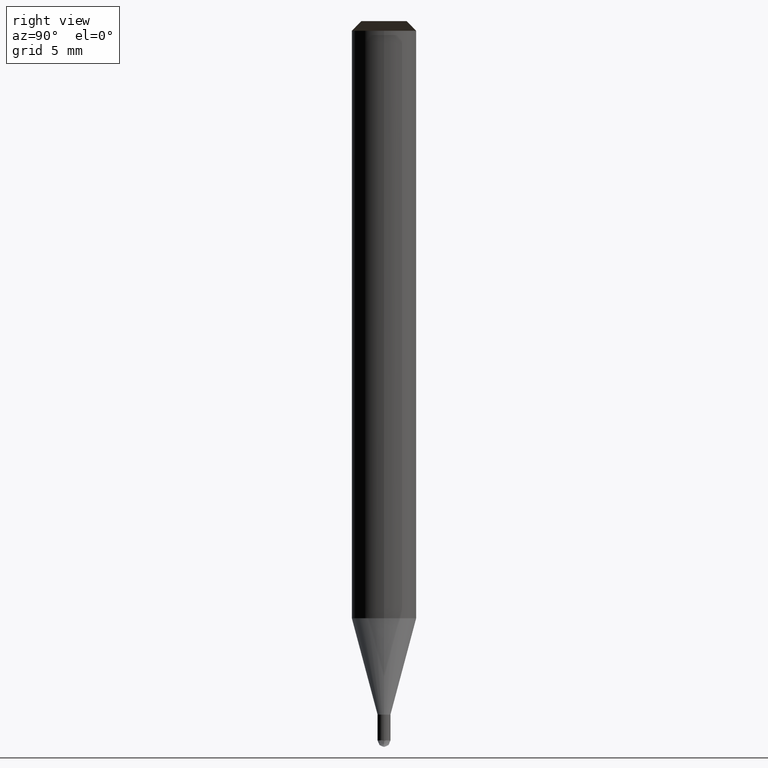
[diagram: clean part render]
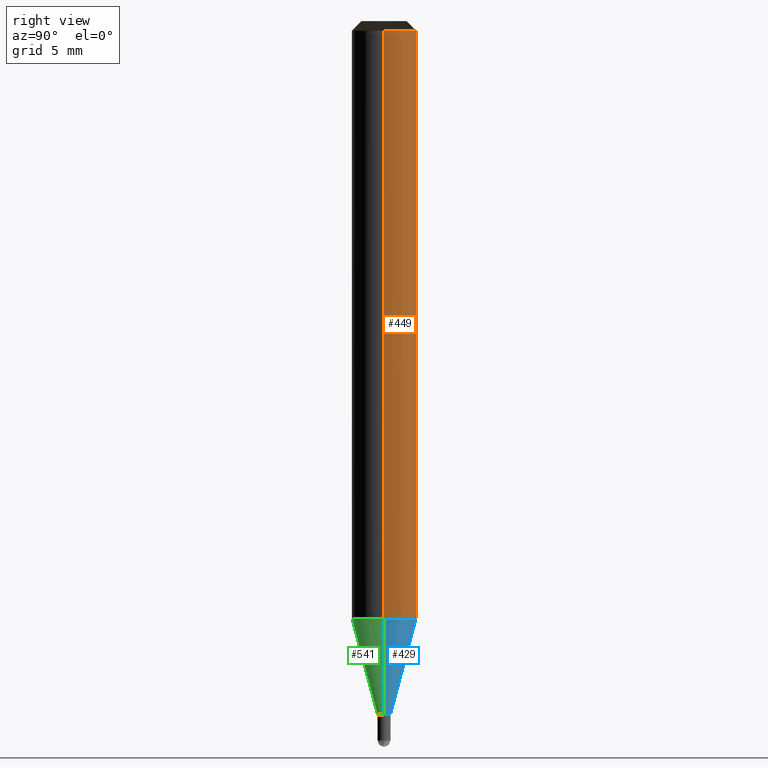
[diagram: same view with three faces highlighted in distinct colors, each labeled with its STEP entity id]
A machine part, right view with three faces highlighted in distinct colors.
Their STEP definitions:

[orange] entity #449 — the highlighted face is a freeform B-spline surface patch.
#233=CARTESIAN_POINT('',(2.0,0.0,-0.0));
#234=CARTESIAN_POINT('',(2.0,2.0,-0.0));
#235=CARTESIAN_POINT('',(0.0,2.0,-0.0));
#236=CARTESIAN_POINT('',(-2.0,2.0,-0.0));
#237=CARTESIAN_POINT('',(-2.0,0.0,-0.0));
#238=CARTESIAN_POINT('',(2.0,0.0,36.428));
#239=CARTESIAN_POINT('',(2.0,2.0,36.428));
#240=CARTESIAN_POINT('',(0.0,2.0,36.428));
#241=CARTESIAN_POINT('',(-2.0,2.0,36.428));
#242=CARTESIAN_POINT('',(-2.0,0.0,36.428));
#430=(
BOUNDED_SURFACE()
B_SPLINE_SURFACE(1,2,(
(#233,#234,#235,#236,#237),
(#238,#239,#240,#241,#242)
), .UNSPECIFIED.,.F.,.F.,.F.)
B_SPLINE_SURFACE_WITH_KNOTS((2,2),(3,2,3),(
0.0,1.0),(
0.0,0.5,1.0), .UNSPECIFIED.)
GEOMETRIC_REPRESENTATION_ITEM()
RATIONAL_B_SPLINE_SURFACE(((1.0,0.707106781187,1.0,0.707106781187,1.0),
(1.0,0.707106781187,1.0,0.707106781187,1.0)
))
REPRESENTATION_ITEM('')
SURFACE()
);
#431=(
BOUNDED_CURVE()
B_SPLINE_CURVE(2,(#238,#239,#240,#241,#242),.UNSPECIFIED.,.F.,.F.)
B_SPLINE_CURVE_WITH_KNOTS((3,2,3),
(0.0,0.5,1.0),.UNSPECIFIED.)
CURVE()
GEOMETRIC_REPRESENTATION_ITEM()
RATIONAL_B_SPLINE_CURVE((1.0,0.707106781187,1.0,0.707106781187,1.0))
REPRESENTATION_ITEM('')
);
#432=(
BOUNDED_CURVE()
B_SPLINE_CURVE(1,(#242,#237),.UNSPECIFIED.,.F.,.F.)
B_SPLINE_CURVE_WITH_KNOTS((2,2),
(0.0,1.0),.UNSPECIFIED.)
CURVE()
GEOMETRIC_REPRESENTATION_ITEM()
RATIONAL_B_SPLINE_CURVE((1.0,1.0))
REPRESENTATION_ITEM('')
);
#433=(
BOUNDED_CURVE()
B_SPLINE_CURVE(2,(#237,#236,#235,#234,#233),.UNSPECIFIED.,.F.,.F.)
B_SPLINE_CURVE_WITH_KNOTS((3,2,3),
(0.0,0.5,1.0),.UNSPECIFIED.)
CURVE()
GEOMETRIC_REPRESENTATION_ITEM()
RATIONAL_B_SPLINE_CURVE((1.0,0.707106781187,1.0,0.707106781187,1.0))
REPRESENTATION_ITEM('')
);
#434=(
BOUNDED_CURVE()
B_SPLINE_CURVE(1,(#233,#238),.UNSPECIFIED.,.F.,.F.)
B_SPLINE_CURVE_WITH_KNOTS((2,2),
(0.0,1.0),.UNSPECIFIED.)
CURVE()
GEOMETRIC_REPRESENTATION_ITEM()
RATIONAL_B_SPLINE_CURVE((1.0,1.0))
REPRESENTATION_ITEM('')
);
#435=VERTEX_POINT('',#233);
#436=VERTEX_POINT('',#237);
#437=VERTEX_POINT('',#238);
#438=VERTEX_POINT('',#242);
#439=EDGE_CURVE('',#437,#438,#431,.T.);
#440=EDGE_CURVE('',#438,#436,#432,.T.);
#441=EDGE_CURVE('',#436,#435,#433,.T.);
#442=EDGE_CURVE('',#435,#437,#434,.T.);
#443=ORIENTED_EDGE('',*,*,#439,.T.);
#444=ORIENTED_EDGE('',*,*,#440,.T.);
#445=ORIENTED_EDGE('',*,*,#441,.T.);
#446=ORIENTED_EDGE('',*,*,#442,.T.);
#447=EDGE_LOOP('',(#443,#444,#445,#446));
#448=FACE_OUTER_BOUND('',#447,.T.);
#449=ADVANCED_FACE('',(#448),#430,.T.);

[blue] entity #429 — the highlighted face is a freeform B-spline surface patch.
#228=CARTESIAN_POINT('',(0.4,0.0,-5.97128129211));
#229=CARTESIAN_POINT('',(0.4,0.4,-5.97128129211));
#230=CARTESIAN_POINT('',(0.0,0.4,-5.97128129211));
#231=CARTESIAN_POINT('',(-0.4,0.4,-5.97128129211));
#232=CARTESIAN_POINT('',(-0.4,0.0,-5.97128129211));
#233=CARTESIAN_POINT('',(2.0,0.0,-0.0));
#234=CARTESIAN_POINT('',(2.0,2.0,-0.0));
#235=CARTESIAN_POINT('',(0.0,2.0,-0.0));
#236=CARTESIAN_POINT('',(-2.0,2.0,-0.0));
#237=CARTESIAN_POINT('',(-2.0,0.0,-0.0));
#410=(
BOUNDED_SURFACE()
B_SPLINE_SURFACE(1,2,(
(#228,#229,#230,#231,#232),
(#233,#234,#235,#236,#237)
), .UNSPECIFIED.,.F.,.F.,.F.)
B_SPLINE_SURFACE_WITH_KNOTS((2,2),(3,2,3),(
0.0,1.0),(
0.0,0.5,1.0), .UNSPECIFIED.)
GEOMETRIC_REPRESENTATION_ITEM()
RATIONAL_B_SPLINE_SURFACE(((1.0,0.707106781187,1.0,0.707106781187,1.0),
(1.0,0.707106781187,1.0,0.707106781187,1.0)
))
REPRESENTATION_ITEM('')
SURFACE()
);
#411=(
BOUNDED_CURVE()
B_SPLINE_CURVE(2,(#233,#234,#235,#236,#237),.UNSPECIFIED.,.F.,.F.)
B_SPLINE_CURVE_WITH_KNOTS((3,2,3),
(0.0,0.5,1.0),.UNSPECIFIED.)
CURVE()
GEOMETRIC_REPRESENTATION_ITEM()
RATIONAL_B_SPLINE_CURVE((1.0,0.707106781187,1.0,0.707106781187,1.0))
REPRESENTATION_ITEM('')
);
#412=(
BOUNDED_CURVE()
B_SPLINE_CURVE(1,(#237,#232),.UNSPECIFIED.,.F.,.F.)
B_SPLINE_CURVE_WITH_KNOTS((2,2),
(0.0,1.0),.UNSPECIFIED.)
CURVE()
GEOMETRIC_REPRESENTATION_ITEM()
RATIONAL_B_SPLINE_CURVE((1.0,1.0))
REPRESENTATION_ITEM('')
);
#413=(
BOUNDED_CURVE()
B_SPLINE_CURVE(2,(#232,#231,#230,#229,#228),.UNSPECIFIED.,.F.,.F.)
B_SPLINE_CURVE_WITH_KNOTS((3,2,3),
(0.0,0.5,1.0),.UNSPECIFIED.)
CURVE()
GEOMETRIC_REPRESENTATION_ITEM()
RATIONAL_B_SPLINE_CURVE((1.0,0.707106781187,1.0,0.707106781187,1.0))
REPRESENTATION_ITEM('')
);
#414=(
BOUNDED_CURVE()
B_SPLINE_CURVE(1,(#228,#233),.UNSPECIFIED.,.F.,.F.)
B_SPLINE_CURVE_WITH_KNOTS((2,2),
(0.0,1.0),.UNSPECIFIED.)
CURVE()
GEOMETRIC_REPRESENTATION_ITEM()
RATIONAL_B_SPLINE_CURVE((1.0,1.0))
REPRESENTATION_ITEM('')
);
#415=VERTEX_POINT('',#228);
#416=VERTEX_POINT('',#232);
#417=VERTEX_POINT('',#233);
#418=VERTEX_POINT('',#237);
#419=EDGE_CURVE('',#417,#418,#411,.T.);
#420=EDGE_CURVE('',#418,#416,#412,.T.);
#421=EDGE_CURVE('',#416,#415,#413,.T.);
#422=EDGE_CURVE('',#415,#417,#414,.T.);
#423=ORIENTED_EDGE('',*,*,#419,.T.);
#424=ORIENTED_EDGE('',*,*,#420,.T.);
#425=ORIENTED_EDGE('',*,*,#421,.T.);
#426=ORIENTED_EDGE('',*,*,#422,.T.);
#427=EDGE_LOOP('',(#423,#424,#425,#426));
#428=FACE_OUTER_BOUND('',#427,.T.);
#429=ADVANCED_FACE('',(#428),#410,.T.);

[green] entity #541 — the highlighted face is a freeform B-spline surface patch.
#228=CARTESIAN_POINT('',(0.4,0.0,-5.97128129211));
#232=CARTESIAN_POINT('',(-0.4,0.0,-5.97128129211));
#233=CARTESIAN_POINT('',(2.0,0.0,-0.0));
#237=CARTESIAN_POINT('',(-2.0,0.0,-0.0));
#249=CARTESIAN_POINT('',(-0.4,-0.4,-5.97128129211));
#250=CARTESIAN_POINT('',(0.0,-0.4,-5.97128129211));
#251=CARTESIAN_POINT('',(0.4,-0.4,-5.97128129211));
#252=CARTESIAN_POINT('',(-2.0,-2.0,-0.0));
#253=CARTESIAN_POINT('',(0.0,-2.0,-0.0));
#254=CARTESIAN_POINT('',(2.0,-2.0,-0.0));
#522=(
BOUNDED_SURFACE()
B_SPLINE_SURFACE(1,2,(
(#232,#249,#250,#251,#228),
(#237,#252,#253,#254,#233)
), .UNSPECIFIED.,.F.,.F.,.F.)
B_SPLINE_SURFACE_WITH_KNOTS((2,2),(3,2,3),(
0.0,1.0),(
0.0,0.5,1.0), .UNSPECIFIED.)
GEOMETRIC_REPRESENTATION_ITEM()
RATIONAL_B_SPLINE_SURFACE(((1.0,0.707106781187,1.0,0.707106781187,1.0),
(1.0,0.707106781187,1.0,0.707106781187,1.0)
))
REPRESENTATION_ITEM('')
SURFACE()
);
#523=(
BOUNDED_CURVE()
B_SPLINE_CURVE(1,(#237,#232),.UNSPECIFIED.,.F.,.F.)
B_SPLINE_CURVE_WITH_KNOTS((2,2),
(0.0,1.0),.UNSPECIFIED.)
CURVE()
GEOMETRIC_REPRESENTATION_ITEM()
RATIONAL_B_SPLINE_CURVE((1.0,1.0))
REPRESENTATION_ITEM('')
);
#524=(
BOUNDED_CURVE()
B_SPLINE_CURVE(2,(#232,#249,#250,#251,#228),.UNSPECIFIED.,.F.,.F.)
B_SPLINE_CURVE_WITH_KNOTS((3,2,3),
(0.0,0.5,1.0),.UNSPECIFIED.)
CURVE()
GEOMETRIC_REPRESENTATION_ITEM()
RATIONAL_B_SPLINE_CURVE((1.0,0.707106781187,1.0,0.707106781187,1.0))
REPRESENTATION_ITEM('')
);
#525=(
BOUNDED_CURVE()
B_SPLINE_CURVE(1,(#228,#233),.UNSPECIFIED.,.F.,.F.)
B_SPLINE_CURVE_WITH_KNOTS((2,2),
(0.0,1.0),.UNSPECIFIED.)
CURVE()
GEOMETRIC_REPRESENTATION_ITEM()
RATIONAL_B_SPLINE_CURVE((1.0,1.0))
REPRESENTATION_ITEM('')
);
#526=(
BOUNDED_CURVE()
B_SPLINE_CURVE(2,(#233,#254,#253,#252,#237),.UNSPECIFIED.,.F.,.F.)
B_SPLINE_CURVE_WITH_KNOTS((3,2,3),
(0.0,0.5,1.0),.UNSPECIFIED.)
CURVE()
GEOMETRIC_REPRESENTATION_ITEM()
RATIONAL_B_SPLINE_CURVE((1.0,0.707106781187,1.0,0.707106781187,1.0))
REPRESENTATION_ITEM('')
);
#527=VERTEX_POINT('',#228);
#528=VERTEX_POINT('',#232);
#529=VERTEX_POINT('',#233);
#530=VERTEX_POINT('',#237);
#531=EDGE_CURVE('',#530,#528,#523,.T.);
#532=EDGE_CURVE('',#528,#527,#524,.T.);
#533=EDGE_CURVE('',#527,#529,#525,.T.);
#534=EDGE_CURVE('',#529,#530,#526,.T.);
#535=ORIENTED_EDGE('',*,*,#531,.T.);
#536=ORIENTED_EDGE('',*,*,#532,.T.);
#537=ORIENTED_EDGE('',*,*,#533,.T.);
#538=ORIENTED_EDGE('',*,*,#534,.T.);
#539=EDGE_LOOP('',(#535,#536,#537,#538));
#540=FACE_OUTER_BOUND('',#539,.T.);
#541=ADVANCED_FACE('',(#540),#522,.T.);